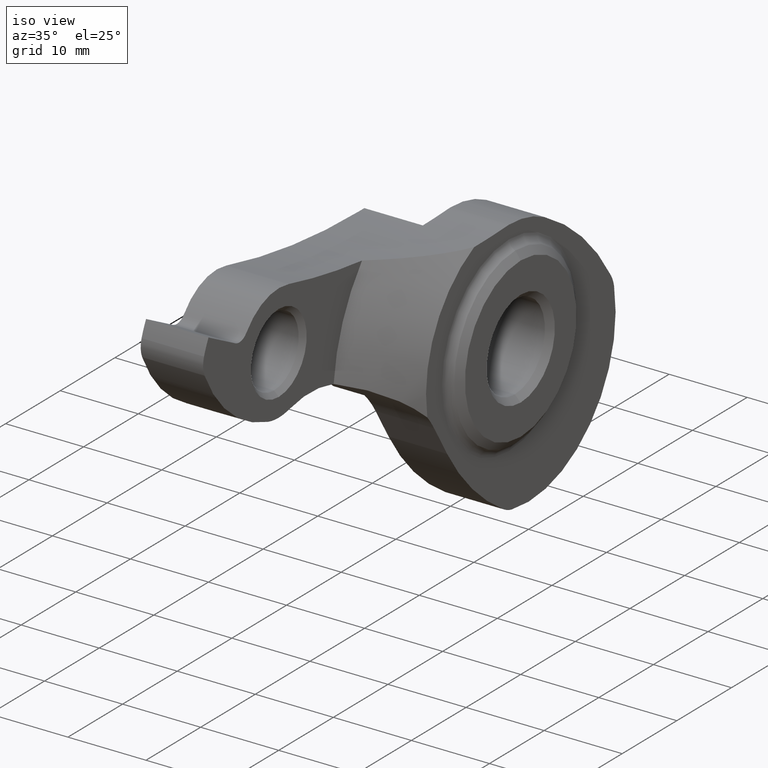
[diagram: clean part render]
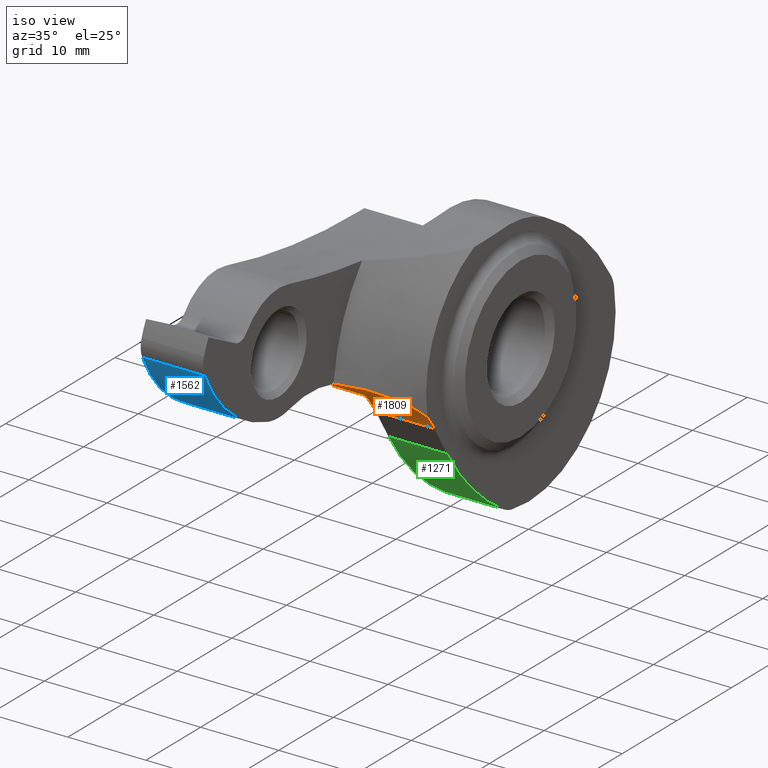
[diagram: same view with three faces highlighted in distinct colors, each labeled with its STEP entity id]
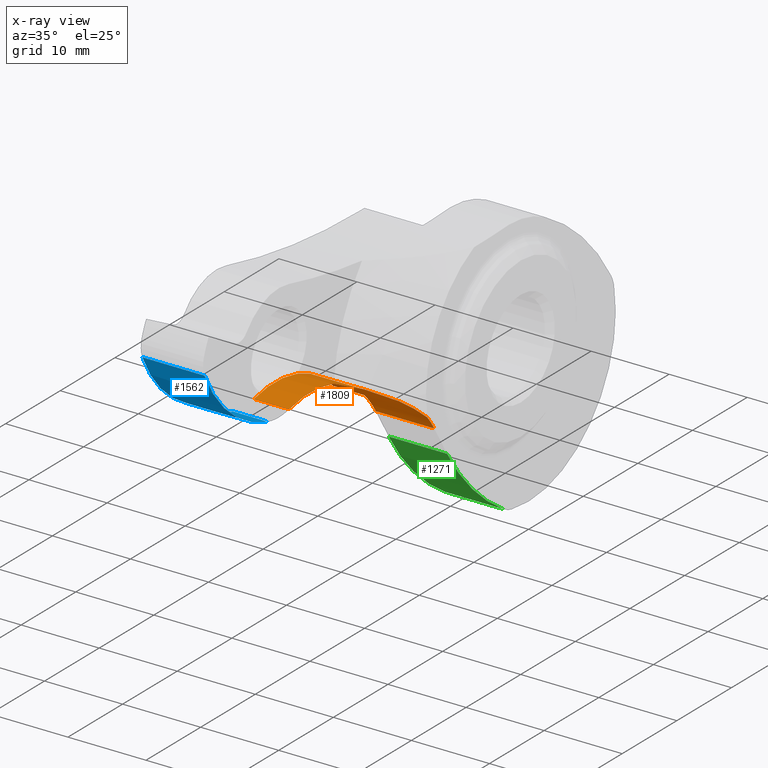
[diagram: x-ray of the same camera — body ghosted, the three highlighted faces saturated]
A machine part, iso view with three faces highlighted in distinct colors.
The next image is the same camera in x-ray (body ghosted, the three faces saturated) — at least one of them is partly hidden behind the body in this view.
Their STEP definitions:

[orange] entity #1809 — the highlighted cylindrical surface (partial cylindrical patch) has radius 15 mm, axis along (1, 0, 0).
#43 = CARTESIAN_POINT ( 'NONE',  ( 0.0000000000000000000, -13.68810267792629531, -4.424803575130384026 ) ) ;
#61 = EDGE_CURVE ( 'NONE', #1838, #864, #1793, .T. ) ;
#99 = EDGE_CURVE ( 'NONE', #393, #1038, #285, .T. ) ;
#115 = VERTEX_POINT ( 'NONE', #803 ) ;
#267 = DIRECTION ( 'NONE',  ( 1.000000000000000000, 0.0000000000000000000, 0.0000000000000000000 ) ) ;
#285 = LINE ( 'NONE', #1257, #1781 ) ;
#288 = CARTESIAN_POINT ( 'NONE',  ( 7.500000000000000000, -14.95473091495274254, -2.663104065063292669 ) ) ;
#315 = CARTESIAN_POINT ( 'NONE',  ( 6.298564700535537852, -16.34979715003604639, -1.197704129909980209 ) ) ;
#324 = CARTESIAN_POINT ( 'NONE',  ( 3.069476808726425698, -19.59274454077827698, 1.071151108616525738 ) ) ;
#393 = VERTEX_POINT ( 'NONE', #43 ) ;
#407 = AXIS2_PLACEMENT_3D ( 'NONE', #581, #1630, #722 ) ;
#413 = LINE ( 'NONE', #847, #1567 ) ;
#418 = DIRECTION ( 'NONE',  ( -1.000000000000000000, -0.0000000000000000000, -0.0000000000000000000 ) ) ;
#472 = CARTESIAN_POINT ( 'NONE',  ( 7.057915210571716003, -15.50221048651274991, -2.035238140193220691 ) ) ;
#477 = CARTESIAN_POINT ( 'NONE',  ( -3.999999999999996447, -26.46841881882030023, -12.27741583722535346 ) ) ;
#484 = DIRECTION ( 'NONE',  ( 1.000000000000000000, 0.0000000000000000000, 0.0000000000000000000 ) ) ;
#525 = FACE_OUTER_BOUND ( 'NONE', #1270, .T. ) ;
#536 = CIRCLE ( 'NONE', #407, 15.00000000000000355 ) ;
#570 = ORIENTED_EDGE ( 'NONE', *, *, #827, .T. ) ;
#578 = ORIENTED_EDGE ( 'NONE', *, *, #1769, .T. ) ;
#581 = CARTESIAN_POINT ( 'NONE',  ( 0.0000000000000000000, -26.46841881882030023, -12.27741583722535346 ) ) ;
#615 = CARTESIAN_POINT ( 'NONE',  ( 7.500000000000000000, -14.95473091495274254, -2.663104065063292669 ) ) ;
#620 = DIRECTION ( 'NONE',  ( 0.0000000000000000000, 0.0000000000000000000, 1.000000000000000000 ) ) ;
#644 = ORIENTED_EDGE ( 'NONE', *, *, #747, .F. ) ;
#673 = AXIS2_PLACEMENT_3D ( 'NONE', #1309, #418, #1454 ) ;
#699 = ORIENTED_EDGE ( 'NONE', *, *, #99, .T. ) ;
#720 = DIRECTION ( 'NONE',  ( 0.0000000000000000000, 0.0000000000000000000, -1.000000000000000000 ) ) ;
#722 = DIRECTION ( 'NONE',  ( 0.0000000000000000000, 0.0000000000000000000, 1.000000000000000000 ) ) ;
#737 = VERTEX_POINT ( 'NONE', #1605 ) ;
#741 = EDGE_CURVE ( 'NONE', #737, #1838, #810, .T. ) ;
#747 = EDGE_CURVE ( 'NONE', #115, #737, #413, .T. ) ;
#760 = CARTESIAN_POINT ( 'NONE',  ( 1.156621807414342840, -21.45203222252498065, 1.874799582257289599 ) ) ;
#800 = ORIENTED_EDGE ( 'NONE', *, *, #961, .T. ) ;
#802 = CARTESIAN_POINT ( 'NONE',  ( 7.500000000000000000, -26.46841881882030023, -12.27741583722535346 ) ) ;
#803 = CARTESIAN_POINT ( 'NONE',  ( -3.999999999999996447, -30.23931081188544923, 2.240861387591551068 ) ) ;
#810 = CIRCLE ( 'NONE', #673, 15.00000000000000355 ) ;
#827 = EDGE_CURVE ( 'NONE', #1520, #393, #536, .T. ) ;
#847 = CARTESIAN_POINT ( 'NONE',  ( -46.24134013796409448, -30.23931081188544923, 2.240861387591551068 ) ) ;
#862 = CYLINDRICAL_SURFACE ( 'NONE', #1009, 15.00000000000000533 ) ;
#864 = VERTEX_POINT ( 'NONE', #288 ) ;
#900 = CARTESIAN_POINT ( 'NONE',  ( 4.892618832732321010, -17.80116771089152294, -0.01465299412253164707 ) ) ;
#933 = ORIENTED_EDGE ( 'NONE', *, *, #61, .F. ) ;
#961 = EDGE_CURVE ( 'NONE', #115, #1874, #1536, .T. ) ;
#1009 = AXIS2_PLACEMENT_3D ( 'NONE', #1696, #1844, #1535 ) ;
#1038 = VERTEX_POINT ( 'NONE', #1691 ) ;
#1039 = CARTESIAN_POINT ( 'NONE',  ( -4.000000000000000000, -15.72204076562342934, -1.812457225851452858 ) ) ;
#1058 = CARTESIAN_POINT ( 'NONE',  ( 0.4999999999999995559, -22.09320875708426968, 2.070320462124583649 ) ) ;
#1082 = EDGE_CURVE ( 'NONE', #864, #1038, #1415, .T. ) ;
#1097 = LINE ( 'NONE', #1368, #1860 ) ;
#1213 = CARTESIAN_POINT ( 'NONE',  ( 5.475311242301994952, -17.21720479043299434, -0.4452096619672541999 ) ) ;
#1221 = CARTESIAN_POINT ( 'NONE',  ( 3.689981488284018951, -18.98900496241047620, 0.7439113869334995632 ) ) ;
#1257 = CARTESIAN_POINT ( 'NONE',  ( -46.24134013796409448, -13.68810267792629531, -4.424803575130384914 ) ) ;
#1270 = EDGE_LOOP ( 'NONE', ( #644, #800, #578, #570, #699, #1329, #933, #1831 ) ) ;
#1281 = AXIS2_PLACEMENT_3D ( 'NONE', #802, #1858, #720 ) ;
#1309 = CARTESIAN_POINT ( 'NONE',  ( 0.5000000000000004441, -26.46841881882030023, -12.27741583722535346 ) ) ;
#1312 = CARTESIAN_POINT ( 'NONE',  ( 0.0000000000000000000, -15.72204076562343289, -1.812457225851452858 ) ) ;
#1329 = ORIENTED_EDGE ( 'NONE', *, *, #1082, .F. ) ;
#1360 = CARTESIAN_POINT ( 'NONE',  ( 6.562820174903066572, -16.06352953001491457, -1.465468369129839132 ) ) ;
#1368 = CARTESIAN_POINT ( 'NONE',  ( -3.750000000000000000, -15.72204076562342934, -1.812457225851451970 ) ) ;
#1397 = DIRECTION ( 'NONE',  ( 1.000000000000000000, 0.0000000000000000000, 0.0000000000000000000 ) ) ;
#1415 = CIRCLE ( 'NONE', #1281, 15.00000000000000533 ) ;
#1454 = DIRECTION ( 'NONE',  ( 0.0000000000000000000, 0.0000000000000000000, 1.000000000000000000 ) ) ;
#1505 = CARTESIAN_POINT ( 'NONE',  ( 7.289700056183533228, -15.22624109338196696, -2.337955106797871885 ) ) ;
#1514 = DIRECTION ( 'NONE',  ( -1.000000000000000000, 0.0000000000000000000, 0.0000000000000000000 ) ) ;
#1520 = VERTEX_POINT ( 'NONE', #1312 ) ;
#1535 = DIRECTION ( 'NONE',  ( 0.0000000000000000000, 0.0000000000000000000, -1.000000000000000000 ) ) ;
#1536 = CIRCLE ( 'NONE', #1908, 15.00000000000000355 ) ;
#1567 = VECTOR ( 'NONE', #267, 1000.000000000000000 ) ;
#1605 = CARTESIAN_POINT ( 'NONE',  ( 0.5000000000000004441, -30.23931081188544923, 2.240861387591549292 ) ) ;
#1630 = DIRECTION ( 'NONE',  ( -1.000000000000000000, 0.0000000000000000000, 0.0000000000000000000 ) ) ;
#1646 = CARTESIAN_POINT ( 'NONE',  ( 0.4999999999999995559, -22.09320875708426968, 2.070320462124583649 ) ) ;
#1691 = CARTESIAN_POINT ( 'NONE',  ( 7.500000000000000000, -13.68810267792629531, -4.424803575130384914 ) ) ;
#1696 = CARTESIAN_POINT ( 'NONE',  ( -46.24134013796409448, -26.46841881882030023, -12.27741583722535346 ) ) ;
#1769 = EDGE_CURVE ( 'NONE', #1874, #1520, #1097, .T. ) ;
#1781 = VECTOR ( 'NONE', #1397, 1000.000000000000000 ) ;
#1793 = B_SPLINE_CURVE_WITH_KNOTS ( 'NONE', 3,
 ( #1058, #760, #1812, #324, #1221, #900, #1213, #315, #1360, #472, #1505, #615 ),
 .UNSPECIFIED., .F., .F.,
 ( 4, 2, 2, 2, 2, 4 ),
 ( 2.818689054388469432E-07, 0.002776505456939424958, 0.005552729044973410584, 0.008328952633007395343, 0.009717064427024392492, 0.01110517622104138964 ),
 .UNSPECIFIED. ) ;
#1809 = ADVANCED_FACE ( 'NONE', ( #525 ), #862, .F. ) ;
#1812 = CARTESIAN_POINT ( 'NONE',  ( 1.802885719280348686, -20.82428387335698616, 1.636709252148787597 ) ) ;
#1831 = ORIENTED_EDGE ( 'NONE', *, *, #741, .F. ) ;
#1838 = VERTEX_POINT ( 'NONE', #1646 ) ;
#1844 = DIRECTION ( 'NONE',  ( 1.000000000000000000, 0.0000000000000000000, 0.0000000000000000000 ) ) ;
#1858 = DIRECTION ( 'NONE',  ( -1.000000000000000000, -0.0000000000000000000, -0.0000000000000000000 ) ) ;
#1860 = VECTOR ( 'NONE', #484, 1000.000000000000000 ) ;
#1874 = VERTEX_POINT ( 'NONE', #1039 ) ;
#1908 = AXIS2_PLACEMENT_3D ( 'NONE', #477, #1514, #620 ) ;

[blue] entity #1562 — the highlighted cylindrical surface (partial cylindrical patch) has radius 18 mm, axis along (1, 0, 0).
#1 = CARTESIAN_POINT ( 'NONE',  ( -7.500000000000000000, -45.69721969635906333, 12.03737091404925685 ) ) ;
#15 = AXIS2_PLACEMENT_3D ( 'NONE', #1626, #717, #1772 ) ;
#64 = EDGE_CURVE ( 'NONE', #394, #1853, #1559, .T. ) ;
#75 = DIRECTION ( 'NONE',  ( 1.000000000000000000, -0.0000000000000000000, -0.0000000000000000000 ) ) ;
#127 = EDGE_CURVE ( 'NONE', #394, #384, #982, .T. ) ;
#146 = AXIS2_PLACEMENT_3D ( 'NONE', #383, #1423, #539 ) ;
#164 = EDGE_CURVE ( 'NONE', #384, #855, #1744, .T. ) ;
#189 = CIRCLE ( 'NONE', #15, 18.00000000000000355 ) ;
#231 = VECTOR ( 'NONE', #731, 1000.000000000000000 ) ;
#383 = CARTESIAN_POINT ( 'NONE',  ( -7.500000000000000000, -29.37909503496453922, 19.63466040012176350 ) ) ;
#384 = VERTEX_POINT ( 'NONE', #1833 ) ;
#394 = VERTEX_POINT ( 'NONE', #777 ) ;
#419 = ORIENTED_EDGE ( 'NONE', *, *, #127, .T. ) ;
#434 = DIRECTION ( 'NONE',  ( 1.000000000000000000, 0.0000000000000000000, 0.0000000000000000000 ) ) ;
#539 = DIRECTION ( 'NONE',  ( 0.0000000000000000000, 0.0000000000000000000, -1.000000000000000000 ) ) ;
#575 = CIRCLE ( 'NONE', #146, 18.00000000000000355 ) ;
#658 = AXIS2_PLACEMENT_3D ( 'NONE', #1463, #434, #869 ) ;
#668 = CARTESIAN_POINT ( 'NONE',  ( -7.500000000000000000, -34.08594378945623049, 2.260956857055878899 ) ) ;
#686 = ORIENTED_EDGE ( 'NONE', *, *, #1161, .T. ) ;
#717 = DIRECTION ( 'NONE',  ( 1.000000000000000000, 0.0000000000000000000, 0.0000000000000000000 ) ) ;
#731 = DIRECTION ( 'NONE',  ( 1.000000000000000000, 0.0000000000000000000, 0.0000000000000000000 ) ) ;
#777 = CARTESIAN_POINT ( 'NONE',  ( -4.000000000000000000, -37.53318471204336504, 3.587516681124399032 ) ) ;
#805 = VECTOR ( 'NONE', #917, 1000.000000000000000 ) ;
#819 = EDGE_CURVE ( 'NONE', #1924, #855, #189, .T. ) ;
#855 = VERTEX_POINT ( 'NONE', #1024 ) ;
#869 = DIRECTION ( 'NONE',  ( 0.0000000000000000000, 0.0000000000000000000, -1.000000000000000000 ) ) ;
#881 = AXIS2_PLACEMENT_3D ( 'NONE', #955, #75, #1106 ) ;
#917 = DIRECTION ( 'NONE',  ( -1.000000000000000000, -0.0000000000000000000, -0.0000000000000000000 ) ) ;
#935 = VECTOR ( 'NONE', #1724, 1000.000000000000000 ) ;
#955 = CARTESIAN_POINT ( 'NONE',  ( -4.000000000000000000, -29.37909503496453922, 19.63466040012176350 ) ) ;
#982 = CIRCLE ( 'NONE', #881, 18.00000000000000711 ) ;
#1024 = CARTESIAN_POINT ( 'NONE',  ( 0.5000000000000000000, -34.08594378945623049, 2.260956857055878899 ) ) ;
#1063 = CARTESIAN_POINT ( 'NONE',  ( -5.750000000000000000, -37.53318471204334372, 3.587516681124391926 ) ) ;
#1106 = DIRECTION ( 'NONE',  ( 0.0000000000000000000, 0.0000000000000000000, 1.000000000000000000 ) ) ;
#1123 = ORIENTED_EDGE ( 'NONE', *, *, #819, .F. ) ;
#1161 = EDGE_CURVE ( 'NONE', #1422, #1853, #575, .T. ) ;
#1182 = CARTESIAN_POINT ( 'NONE',  ( -7.500000000000000000, -37.53318471204336504, 3.587516681124399032 ) ) ;
#1367 = LINE ( 'NONE', #1641, #231 ) ;
#1413 = EDGE_CURVE ( 'NONE', #1422, #1924, #1367, .T. ) ;
#1422 = VERTEX_POINT ( 'NONE', #1 ) ;
#1423 = DIRECTION ( 'NONE',  ( 1.000000000000000000, 0.0000000000000000000, 0.0000000000000000000 ) ) ;
#1463 = CARTESIAN_POINT ( 'NONE',  ( -7.500000000000000000, -29.37909503496453922, 19.63466040012176350 ) ) ;
#1558 = ORIENTED_EDGE ( 'NONE', *, *, #164, .T. ) ;
#1559 = LINE ( 'NONE', #1063, #805 ) ;
#1562 = ADVANCED_FACE ( 'NONE', ( #1629 ), #1927, .T. ) ;
#1626 = CARTESIAN_POINT ( 'NONE',  ( 0.5000000000000000000, -29.37909503496453922, 19.63466040012176350 ) ) ;
#1629 = FACE_OUTER_BOUND ( 'NONE', #1719, .T. ) ;
#1641 = CARTESIAN_POINT ( 'NONE',  ( -7.500000000000000000, -45.69721969635906333, 12.03737091404925685 ) ) ;
#1719 = EDGE_LOOP ( 'NONE', ( #1757, #419, #1558, #1123, #1887, #686 ) ) ;
#1724 = DIRECTION ( 'NONE',  ( 1.000000000000000000, 0.0000000000000000000, 0.0000000000000000000 ) ) ;
#1744 = LINE ( 'NONE', #668, #935 ) ;
#1757 = ORIENTED_EDGE ( 'NONE', *, *, #64, .F. ) ;
#1772 = DIRECTION ( 'NONE',  ( 0.0000000000000000000, 0.0000000000000000000, -1.000000000000000000 ) ) ;
#1795 = CARTESIAN_POINT ( 'NONE',  ( 0.5000000000000000000, -45.69721969635906333, 12.03737091404925685 ) ) ;
#1833 = CARTESIAN_POINT ( 'NONE',  ( -4.000000000000000000, -34.08594378945623049, 2.260956857055882452 ) ) ;
#1853 = VERTEX_POINT ( 'NONE', #1182 ) ;
#1887 = ORIENTED_EDGE ( 'NONE', *, *, #1413, .F. ) ;
#1924 = VERTEX_POINT ( 'NONE', #1795 ) ;
#1927 = CYLINDRICAL_SURFACE ( 'NONE', #658, 18.00000000000000355 ) ;

[green] entity #1271 — the highlighted cylindrical surface (partial cylindrical patch) has radius 31.6992 mm, axis along (-1, -0, -0).
#73 = CIRCLE ( 'NONE', #483, 31.69919999999996918 ) ;
#130 = AXIS2_PLACEMENT_3D ( 'NONE', #337, #1377, #492 ) ;
#142 = CARTESIAN_POINT ( 'NONE',  ( 7.500000000000000000, -11.33231899929779907, -8.258898417398599534 ) ) ;
#275 = VERTEX_POINT ( 'NONE', #1530 ) ;
#337 = CARTESIAN_POINT ( 'NONE',  ( 7.500000000000000000, 15.67606749493064733, 8.335870023841447818 ) ) ;
#386 = VECTOR ( 'NONE', #1777, 1000.000000000000000 ) ;
#398 = CARTESIAN_POINT ( 'NONE',  ( 7.500000000000000000, 15.67606749493064733, 8.335870023841447818 ) ) ;
#408 = CARTESIAN_POINT ( 'NONE',  ( 0.0000000000000000000, 15.67606749493064733, 8.335870023841447818 ) ) ;
#483 = AXIS2_PLACEMENT_3D ( 'NONE', #408, #1448, #560 ) ;
#492 = DIRECTION ( 'NONE',  ( 0.0000000000000000000, 0.0000000000000000000, -1.000000000000000000 ) ) ;
#495 = ORIENTED_EDGE ( 'NONE', *, *, #709, .T. ) ;
#552 = DIRECTION ( 'NONE',  ( -1.000000000000000000, -0.0000000000000000000, -0.0000000000000000000 ) ) ;
#560 = DIRECTION ( 'NONE',  ( 0.0000000000000000000, 0.0000000000000000000, -1.000000000000000000 ) ) ;
#672 = VERTEX_POINT ( 'NONE', #1750 ) ;
#692 = FACE_OUTER_BOUND ( 'NONE', #814, .T. ) ;
#709 = EDGE_CURVE ( 'NONE', #1639, #275, #73, .T. ) ;
#814 = EDGE_LOOP ( 'NONE', ( #1678, #1598, #495, #1643 ) ) ;
#836 = VERTEX_POINT ( 'NONE', #142 ) ;
#845 = DIRECTION ( 'NONE',  ( -1.000000000000000000, -0.0000000000000000000, -0.0000000000000000000 ) ) ;
#932 = AXIS2_PLACEMENT_3D ( 'NONE', #398, #552, #1300 ) ;
#993 = VECTOR ( 'NONE', #845, 1000.000000000000000 ) ;
#999 = CARTESIAN_POINT ( 'NONE',  ( 7.500000000000000000, -0.9330849617236076643, -18.66367321880645136 ) ) ;
#1035 = CYLINDRICAL_SURFACE ( 'NONE', #932, 31.69919999999996918 ) ;
#1176 = CARTESIAN_POINT ( 'NONE',  ( 0.0000000000000000000, -11.33231899929781150, -8.258898417398571112 ) ) ;
#1271 = ADVANCED_FACE ( 'NONE', ( #692 ), #1035, .T. ) ;
#1300 = DIRECTION ( 'NONE',  ( 0.0000000000000000000, 0.0000000000000000000, 1.000000000000000000 ) ) ;
#1318 = EDGE_CURVE ( 'NONE', #672, #275, #1849, .T. ) ;
#1327 = CARTESIAN_POINT ( 'NONE',  ( -46.24134013796409448, -11.33231899929781150, -8.258898417398571112 ) ) ;
#1377 = DIRECTION ( 'NONE',  ( 1.000000000000000000, 0.0000000000000000000, 0.0000000000000000000 ) ) ;
#1446 = CIRCLE ( 'NONE', #130, 31.69919999999996918 ) ;
#1448 = DIRECTION ( 'NONE',  ( 1.000000000000000000, 0.0000000000000000000, 0.0000000000000000000 ) ) ;
#1530 = CARTESIAN_POINT ( 'NONE',  ( 0.0000000000000000000, -0.9330849617236076643, -18.66367321880645136 ) ) ;
#1533 = LINE ( 'NONE', #1327, #386 ) ;
#1575 = EDGE_CURVE ( 'NONE', #1639, #836, #1533, .T. ) ;
#1598 = ORIENTED_EDGE ( 'NONE', *, *, #1575, .F. ) ;
#1639 = VERTEX_POINT ( 'NONE', #1176 ) ;
#1643 = ORIENTED_EDGE ( 'NONE', *, *, #1318, .F. ) ;
#1678 = ORIENTED_EDGE ( 'NONE', *, *, #1788, .F. ) ;
#1750 = CARTESIAN_POINT ( 'NONE',  ( 7.500000000000000000, -0.9330849617236076643, -18.66367321880645136 ) ) ;
#1777 = DIRECTION ( 'NONE',  ( 1.000000000000000000, 0.0000000000000000000, 0.0000000000000000000 ) ) ;
#1788 = EDGE_CURVE ( 'NONE', #836, #672, #1446, .T. ) ;
#1849 = LINE ( 'NONE', #999, #993 ) ;